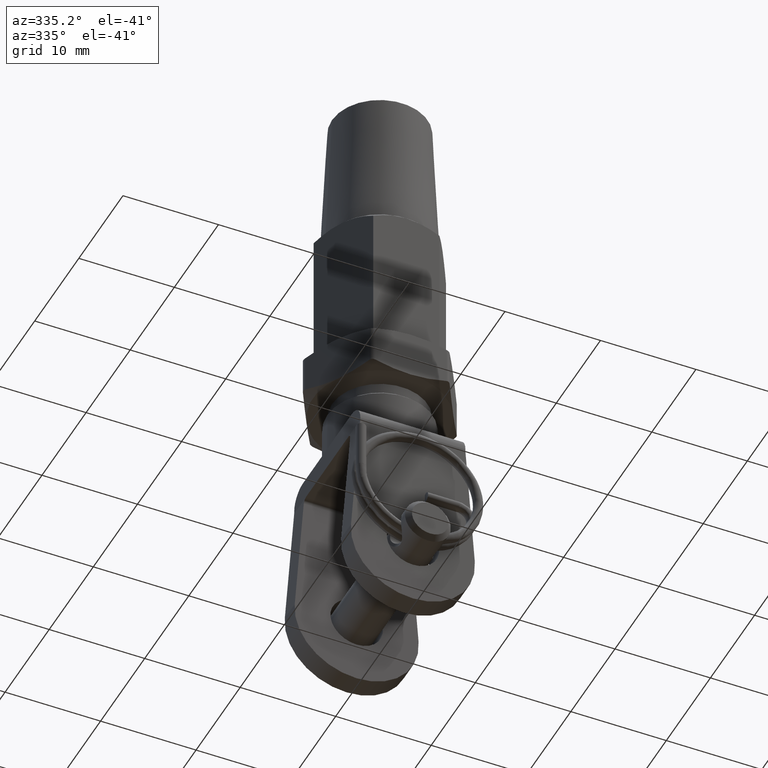
[diagram: clean part render]
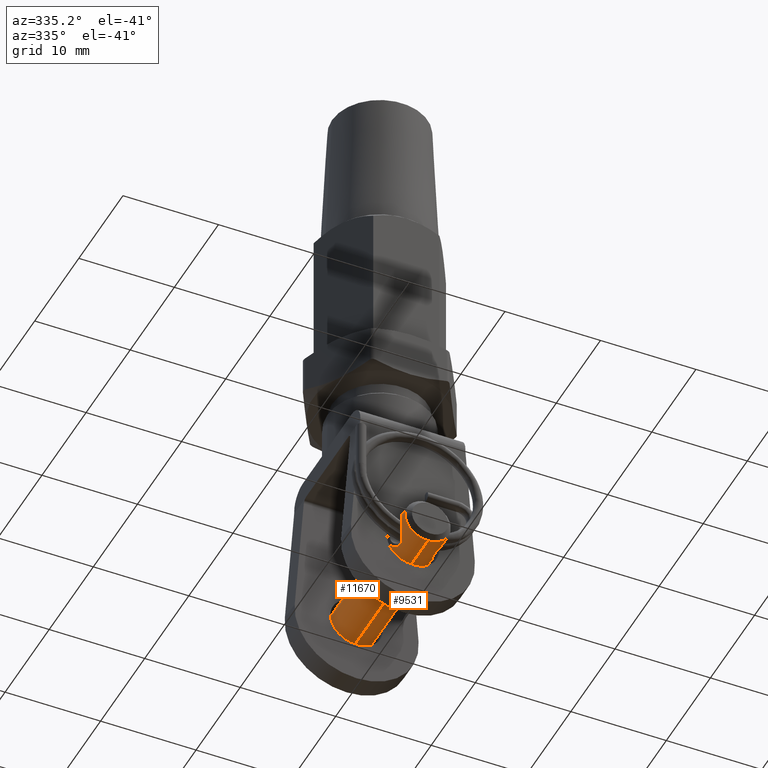
[diagram: same view with one multi-face feature highlighted, each face labeled with its STEP entity id]
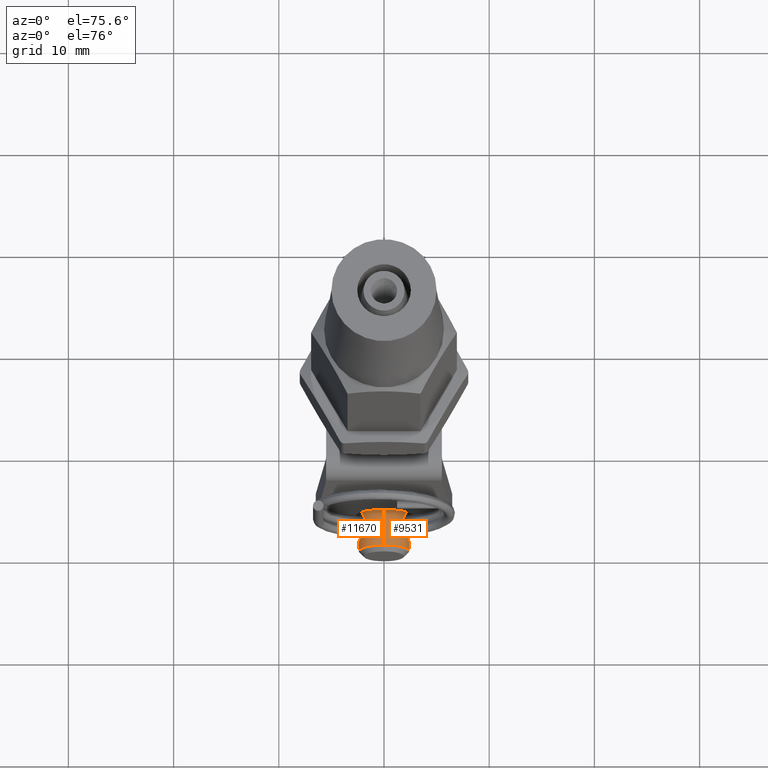
[diagram: same view with one multi-face feature highlighted, each face labeled with its STEP entity id]
A machine part, auxiliary view. The highlighted faces form ONE feature: a constant-radius fillet chain: 2 tangent blend faces with common blend radius 2.4 mm. The faces share edges in the B-rep.
A second angle (auxiliary view) of the same feature is appended — it is thin or edge-on in the first view.
Their STEP definitions:
[1] entity #11670 (Cylinder):
#136 = CARTESIAN_POINT ( 'NONE',  ( 0.0000000000000000000, 1.999999999999999600, -2.400000000000003000 ) ) ;
#410 = AXIS2_PLACEMENT_3D ( 'NONE', #14712, #18077, #21734 ) ;
#667 = DIRECTION ( 'NONE',  ( -0.0000000000000000000, -1.000000000000000000, -0.0000000000000000000 ) ) ;
#1005 = CARTESIAN_POINT ( 'NONE',  ( 1.866490585483761900, 17.44657581705222400, -1.508927518939310100 ) ) ;
#1110 = CARTESIAN_POINT ( 'NONE',  ( 2.067999416795804500, 19.01159639936377100, 1.220705294030628200 ) ) ;
#1111 = ORIENTED_EDGE ( 'NONE', *, *, #22581, .T. ) ;
#1335 = CARTESIAN_POINT ( 'NONE',  ( 1.913282471157462300, 18.68660000650002200, 1.449820356530497900 ) ) ;
#1411 = CARTESIAN_POINT ( 'NONE',  ( 2.010135013035278200, 18.89907834666892600, -1.311715693708461300 ) ) ;
#1575 = CARTESIAN_POINT ( 'NONE',  ( 2.262259428812721600, 19.33517626606314000, -0.8265585608445230600 ) ) ;
#1647 = CARTESIAN_POINT ( 'NONE',  ( 2.368781593166509000, 19.49258147114442600, -0.4357643189075582900 ) ) ;
#2050 = CARTESIAN_POINT ( 'NONE',  ( 1.773800196618495100, 17.99719539089055700, 1.616673393878985900 ) ) ;
#2109 = EDGE_CURVE ( 'NONE', #17518, #9551, #18134, .T. ) ;
#2920 = AXIS2_PLACEMENT_3D ( 'NONE', #14370, #23390, #21464 ) ;
#3051 = CARTESIAN_POINT ( 'NONE',  ( 2.286977257020879500, 16.62834408819435700, -0.7349450092023531700 ) ) ;
#3219 = CARTESIAN_POINT ( 'NONE',  ( 1.900339689853512100, 17.35078442727524700, 1.466090746243713600 ) ) ;
#3324 = CARTESIAN_POINT ( 'NONE',  ( 2.400288494114114300, 19.53616559896426000, -0.2152889701721160400 ) ) ;
#3377 = CARTESIAN_POINT ( 'NONE',  ( 2.364247270420312100, 16.51505366456232300, 0.4263144413362723900 ) ) ;
#4501 = CARTESIAN_POINT ( 'NONE',  ( 2.368160502128828800, 16.50824953189904700, -0.4398322394796467200 ) ) ;
#4584 = CARTESIAN_POINT ( 'NONE',  ( 2.185657138191589700, 16.78611220422536500, -0.9957320026082829800 ) ) ;
#4598 = CARTESIAN_POINT ( 'NONE',  ( 2.939152317953651500E-016, 1.999999999999999600, 2.400000000000003000 ) ) ;
#4600 = EDGE_CURVE ( 'NONE', #9551, #18345, #14083, .T. ) ;
#4740 = CARTESIAN_POINT ( 'NONE',  ( 1.773797739569129600, 18.00000000000000400, -1.616676089728383200 ) ) ;
#4816 = CARTESIAN_POINT ( 'NONE',  ( 1.812784788610190700, 17.64142720283184600, -1.572900341996850100 ) ) ;
#4893 = CARTESIAN_POINT ( 'NONE',  ( 1.823665926486097300, 17.58533475707860900, 1.560489035969438800 ) ) ;
#4967 = CARTESIAN_POINT ( 'NONE',  ( 1.773800196618495100, 17.99719539089055700, 1.616673393878985900 ) ) ;
#6097 = EDGE_LOOP ( 'NONE', ( #15425, #15973 ) ) ;
#6324 = CARTESIAN_POINT ( 'NONE',  ( 1.793927623210560500, 17.74078694000317600, -1.594373813869385500 ) ) ;
#6633 = CARTESIAN_POINT ( 'NONE',  ( 1.824922969406736200, 17.58998274109811200, -1.558867632880004600 ) ) ;
#6797 = FACE_BOUND ( 'NONE', #6097, .T. ) ;
#6809 = CARTESIAN_POINT ( 'NONE',  ( 1.849618342933271300, 18.50518804961500800, 1.530209419044795200 ) ) ;
#6860 = CARTESIAN_POINT ( 'NONE',  ( 2.070362214356135800, 16.98405271397241700, 1.216727796280972600 ) ) ;
#6939 = CARTESIAN_POINT ( 'NONE',  ( 1.784460819820933100, 17.78947121321877100, 1.605173830253666900 ) ) ;
#7043 = CARTESIAN_POINT ( 'NONE',  ( 1.773797739569129600, 18.00000000000000400, -1.616676089728383200 ) ) ;
#7106 = VERTEX_POINT ( 'NONE', #10306 ) ;
#7120 = CARTESIAN_POINT ( 'NONE',  ( 2.362391129818993500, 19.48227919722486600, 0.4369212449692667600 ) ) ;
#7899 = B_SPLINE_CURVE_WITH_KNOTS ( 'NONE', 3,
 ( #8573, #19473, #19243, #21302, #12217, #22827, #6809, #1335, #14054, #15893, #1110, #13835, #8262, #20993, #7120, #21695, #8742, #3324, #1647, #1575, #10632, #14212, #10467, #17799, #1411, #8817, #23392, #21546, #16211, #17961, #12451, #12613, #23233, #7043 ),
 .UNSPECIFIED., .F., .F.,
 ( 4, 2, 2, 2, 2, 2, 2, 2, 2, 2, 2, 2, 2, 2, 2, 2, 4 ),
 ( 0.5000000000000000000, 0.5156249999999998900, 0.5312499999999997800, 0.5624999999999995600, 0.5937499999999992200, 0.6249999999999990000, 0.6874999999999984500, 0.7187499999999980000, 0.7499999999999977800, 0.8124999999999971100, 0.8749999999999964500, 0.8906249999999966700, 0.9062499999999968900, 0.9218749999999971100, 0.9374999999999973400, 0.9687499999999986700, 1.000000000000000000 ),
 .UNSPECIFIED. ) ;
#8143 = CARTESIAN_POINT ( 'NONE',  ( 2.400263577070727500, 16.46387238725792900, 0.1042205364952934800 ) ) ;
#8262 = CARTESIAN_POINT ( 'NONE',  ( 2.260048657403913400, 19.33182475435963000, 0.8329579345951890800 ) ) ;
#8461 = CARTESIAN_POINT ( 'NONE',  ( 1.951687957844529000, 17.22336591854579500, -1.398433226826018400 ) ) ;
#8573 = CARTESIAN_POINT ( 'NONE',  ( 1.773800196618495100, 17.99719539089055700, 1.616673393878985900 ) ) ;
#8742 = CARTESIAN_POINT ( 'NONE',  ( 2.399852568113973300, 19.53554138909465700, 0.1124330922387512500 ) ) ;
#8817 = CARTESIAN_POINT ( 'NONE',  ( 1.970772633191499200, 18.81666752248959500, -1.370144539825944200 ) ) ;
#9109 = DIRECTION ( 'NONE',  ( -0.0000000000000000000, -1.000000000000000000, -0.0000000000000000000 ) ) ;
#9353 = FACE_OUTER_BOUND ( 'NONE', #15636, .T. ) ;
#9551 = VERTEX_POINT ( 'NONE', #136 ) ;
#9932 = CYLINDRICAL_SURFACE ( 'NONE', #2920, 2.400000000000002100 ) ;
#10199 = CARTESIAN_POINT ( 'NONE',  ( 1.776473172871329400, 17.89448116411606500, -1.613752653522716200 ) ) ;
#10283 = CARTESIAN_POINT ( 'NONE',  ( 2.147165849575455500, 16.84915254222355700, -1.075367286279148600 ) ) ;
#10306 = CARTESIAN_POINT ( 'NONE',  ( 2.939152317953650100E-016, 20.40000000000000200, 2.400000000000002100 ) ) ;
#10444 = CARTESIAN_POINT ( 'NONE',  ( 1.971910948140296500, 17.18087774134971100, 1.368497077279902100 ) ) ;
#10467 = CARTESIAN_POINT ( 'NONE',  ( 2.069154856726925600, 19.01258336475865500, -1.216579123601110500 ) ) ;
#10527 = CARTESIAN_POINT ( 'NONE',  ( 2.289676973913622200, 16.62429844391058300, 0.7262962837063875500 ) ) ;
#10632 = CARTESIAN_POINT ( 'NONE',  ( 2.187032187431269500, 19.22086426092899800, -1.001994627945267800 ) ) ;
#11050 = DIRECTION ( 'NONE',  ( -0.0000000000000000000, -1.000000000000000000, -0.0000000000000000000 ) ) ;
#11187 = VECTOR ( 'NONE', #11050, 1000.000000000000000 ) ;
#11492 = EDGE_CURVE ( 'NONE', #18295, #11994, #7899, .T. ) ;
#11670 = ADVANCED_FACE ( 'NONE', ( #6797, #9353 ), #9932, .T. ) ;
#11994 = VERTEX_POINT ( 'NONE', #13312 ) ;
#12217 = CARTESIAN_POINT ( 'NONE',  ( 1.793569833453412300, 18.25693687540029600, 1.594774783730014100 ) ) ;
#12254 = CIRCLE ( 'NONE', #410, 2.400000000000002100 ) ;
#12271 = CARTESIAN_POINT ( 'NONE',  ( 2.392771612592189600, 16.47438748095039100, 0.2146000199317899300 ) ) ;
#12351 = CARTESIAN_POINT ( 'NONE',  ( 1.850705120470565300, 17.49080869672555100, 1.528967824802071300 ) ) ;
#12451 = CARTESIAN_POINT ( 'NONE',  ( 1.822504000314675700, 18.40991937674009900, -1.561835397531140800 ) ) ;
#12613 = CARTESIAN_POINT ( 'NONE',  ( 1.784011322576394700, 18.20682731249344100, -1.605663177962138600 ) ) ;
#13289 = B_SPLINE_CURVE_WITH_KNOTS ( 'NONE', 3,
 ( #4740, #17465, #10199, #22963, #6324, #4816, #6633, #20965, #1005, #19372, #8461, #13954, #21198, #10283, #4584, #19140, #3051, #4501, #19055, #8143, #12271, #3377, #14261, #10527, #19523, #14105, #14027, #6860, #23285, #10444, #17855, #21520, #3219, #12351, #4893, #6939, #19598, #4967 ),
 .UNSPECIFIED., .F., .F.,
 ( 4, 2, 2, 2, 2, 2, 2, 2, 2, 2, 2, 2, 2, 2, 2, 2, 2, 2, 4 ),
 ( 0.0000000000000000000, 0.01562500000000051300, 0.03125000000000102700, 0.04687500000000154000, 0.06250000000000205400, 0.09375000000000220700, 0.1250000000000023600, 0.1562500000000025300, 0.1875000000000026900, 0.2500000000000026100, 0.2812500000000025500, 0.3125000000000025500, 0.3437500000000025000, 0.3750000000000025000, 0.4062500000000024400, 0.4218750000000020500, 0.4375000000000016100, 0.4687500000000007800, 0.5000000000000000000 ),
 .UNSPECIFIED. ) ;
#13312 = CARTESIAN_POINT ( 'NONE',  ( 1.773797739569129600, 18.00000000000000400, -1.616676089728383200 ) ) ;
#13469 = CARTESIAN_POINT ( 'NONE',  ( 0.0000000000000000000, 1.999999999999999600, 0.0000000000000000000 ) ) ;
#13835 = CARTESIAN_POINT ( 'NONE',  ( 2.185897596645991500, 19.21904822644285800, 1.004402164447093700 ) ) ;
#13954 = CARTESIAN_POINT ( 'NONE',  ( 2.028344221779731200, 17.06272200196107700, -1.284726076896999700 ) ) ;
#14027 = CARTESIAN_POINT ( 'NONE',  ( 2.149134368243464700, 16.84584549165298400, 1.071469876436645700 ) ) ;
#14054 = CARTESIAN_POINT ( 'NONE',  ( 1.951161457006096200, 18.77541400232625400, 1.399146137887807800 ) ) ;
#14083 = CIRCLE ( 'NONE', #20239, 2.400000000000003000 ) ;
#14105 = CARTESIAN_POINT ( 'NONE',  ( 2.187360870083085100, 16.78334612833109300, 0.9920048466630045900 ) ) ;
#14212 = CARTESIAN_POINT ( 'NONE',  ( 2.088715468226213900, 19.04809159797152100, -1.182777084554937900 ) ) ;
#14261 = CARTESIAN_POINT ( 'NONE',  ( 2.342440641140604000, 16.54635302924930300, 0.5320702766822716900 ) ) ;
#14370 = CARTESIAN_POINT ( 'NONE',  ( 0.0000000000000000000, 0.0000000000000000000, 0.0000000000000000000 ) ) ;
#14390 = EDGE_CURVE ( 'NONE', #11994, #18295, #13289, .T. ) ;
#14712 = CARTESIAN_POINT ( 'NONE',  ( 0.0000000000000000000, 20.40000000000000200, 0.0000000000000000000 ) ) ;
#14993 = VECTOR ( 'NONE', #9109, 1000.000000000000000 ) ;
#15425 = ORIENTED_EDGE ( 'NONE', *, *, #14390, .T. ) ;
#15636 = EDGE_LOOP ( 'NONE', ( #1111, #18269, #17487, #19911 ) ) ;
#15893 = CARTESIAN_POINT ( 'NONE',  ( 2.027385962712138700, 18.93538446633532100, 1.286214253019417600 ) ) ;
#15973 = ORIENTED_EDGE ( 'NONE', *, *, #11492, .T. ) ;
#16211 = CARTESIAN_POINT ( 'NONE',  ( 1.898611965722771600, 18.64463374140540700, -1.468322641040503500 ) ) ;
#17465 = CARTESIAN_POINT ( 'NONE',  ( 1.773813765221772000, 17.94687056346992200, -1.616658506573284100 ) ) ;
#17487 = ORIENTED_EDGE ( 'NONE', *, *, #4600, .F. ) ;
#17518 = VERTEX_POINT ( 'NONE', #22903 ) ;
#17799 = CARTESIAN_POINT ( 'NONE',  ( 2.029286215509961400, 18.93695293964344700, -1.281976614700880000 ) ) ;
#17855 = CARTESIAN_POINT ( 'NONE',  ( 1.953578532852745500, 17.22135096330278600, 1.394450451567992500 ) ) ;
#17961 = CARTESIAN_POINT ( 'NONE',  ( 1.849409260777944200, 18.50490588065702000, -1.530516411039142700 ) ) ;
#18030 = LINE ( 'NONE', #20297, #11187 ) ;
#18077 = DIRECTION ( 'NONE',  ( -0.0000000000000000000, -1.000000000000000000, -0.0000000000000000000 ) ) ;
#18134 = LINE ( 'NONE', #18192, #14993 ) ;
#18192 = CARTESIAN_POINT ( 'NONE',  ( 0.0000000000000000000, 0.0000000000000000000, -2.400000000000002100 ) ) ;
#18269 = ORIENTED_EDGE ( 'NONE', *, *, #19477, .T. ) ;
#18295 = VERTEX_POINT ( 'NONE', #2050 ) ;
#18345 = VERTEX_POINT ( 'NONE', #4598 ) ;
#19055 = CARTESIAN_POINT ( 'NONE',  ( 2.399451071029666100, 16.46502857303975300, -0.2261486155020310800 ) ) ;
#19140 = CARTESIAN_POINT ( 'NONE',  ( 2.255899440671773200, 16.67520840935137700, -0.8243161167434069900 ) ) ;
#19243 = CARTESIAN_POINT ( 'NONE',  ( 1.776168234423493900, 18.10103894211802000, 1.614087746041395800 ) ) ;
#19372 = CARTESIAN_POINT ( 'NONE',  ( 1.913918226185932900, 17.31191911619840300, -1.448970143212308800 ) ) ;
#19473 = CARTESIAN_POINT ( 'NONE',  ( 1.773699340682392200, 18.04874531004124100, 1.616784052147977000 ) ) ;
#19477 = EDGE_CURVE ( 'NONE', #7106, #18345, #18030, .T. ) ;
#19523 = CARTESIAN_POINT ( 'NONE',  ( 2.257464828691371700, 16.67281657910189100, 0.8200449615691548500 ) ) ;
#19598 = CARTESIAN_POINT ( 'NONE',  ( 1.774001908490701900, 17.89409555258921400, 1.616452077341004300 ) ) ;
#19911 = ORIENTED_EDGE ( 'NONE', *, *, #2109, .F. ) ;
#20239 = AXIS2_PLACEMENT_3D ( 'NONE', #13469, #667, #22784 ) ;
#20297 = CARTESIAN_POINT ( 'NONE',  ( 2.939152317953650100E-016, 0.0000000000000000000, 2.400000000000002100 ) ) ;
#20965 = CARTESIAN_POINT ( 'NONE',  ( 1.851032425817863400, 17.49529703187978300, -1.527773248777462700 ) ) ;
#20993 = CARTESIAN_POINT ( 'NONE',  ( 2.341186679389175600, 19.45184581952178600, 0.5378239915718467900 ) ) ;
#21198 = CARTESIAN_POINT ( 'NONE',  ( 2.068686757776550900, 16.98714604255167500, -1.219537241818553300 ) ) ;
#21302 = CARTESIAN_POINT ( 'NONE',  ( 1.785913862955126300, 18.20382542268679800, 1.603298014406792300 ) ) ;
#21464 = DIRECTION ( 'NONE',  ( 0.0000000000000000000, 0.0000000000000000000, -1.000000000000000000 ) ) ;
#21520 = CARTESIAN_POINT ( 'NONE',  ( 1.916906644191772400, 17.30846713433779600, 1.444448013379054500 ) ) ;
#21546 = CARTESIAN_POINT ( 'NONE',  ( 1.915376668694887900, 18.68771338686762100, -1.446478058434803600 ) ) ;
#21695 = CARTESIAN_POINT ( 'NONE',  ( 2.392195542128870800, 19.52481049449268400, 0.2217938519700476700 ) ) ;
#21734 = DIRECTION ( 'NONE',  ( 0.0000000000000000000, 0.0000000000000000000, 1.000000000000000000 ) ) ;
#22581 = EDGE_CURVE ( 'NONE', #17518, #7106, #12254, .T. ) ;
#22784 = DIRECTION ( 'NONE',  ( 0.0000000000000000000, 0.0000000000000000000, -1.000000000000000000 ) ) ;
#22827 = CARTESIAN_POINT ( 'NONE',  ( 1.821529273081014000, 18.40540250919226800, 1.562955066689307100 ) ) ;
#22903 = CARTESIAN_POINT ( 'NONE',  ( 0.0000000000000000000, 20.40000000000000200, -2.400000000000002100 ) ) ;
#22963 = CARTESIAN_POINT ( 'NONE',  ( 1.786372771748485600, 17.79270350182164200, -1.602787222633986500 ) ) ;
#23233 = CARTESIAN_POINT ( 'NONE',  ( 1.773766567916318800, 18.10334258370307800, -1.616710290894371300 ) ) ;
#23285 = CARTESIAN_POINT ( 'NONE',  ( 2.030325519734652600, 17.05879786576366500, 1.281657690489534500 ) ) ;
#23390 = DIRECTION ( 'NONE',  ( -0.0000000000000000000, -1.000000000000000000, -0.0000000000000000000 ) ) ;
#23392 = CARTESIAN_POINT ( 'NONE',  ( 1.952202893077045200, 18.77555198035570100, -1.396377606801133100 ) ) ;
[2] entity #9531 (Cylinder):
#136 = CARTESIAN_POINT ( 'NONE',  ( 0.0000000000000000000, 1.999999999999999600, -2.400000000000003000 ) ) ;
#216 = EDGE_CURVE ( 'NONE', #7106, #17518, #12182, .T. ) ;
#455 = CARTESIAN_POINT ( 'NONE',  ( -1.823665926488309700, 18.41466524292901900, 1.560489035966917200 ) ) ;
#610 = CARTESIAN_POINT ( 'NONE',  ( -1.916906644196676700, 18.69153286567188500, 1.444448013372369800 ) ) ;
#642 = CARTESIAN_POINT ( 'NONE',  ( -2.067999416817887200, 16.98840360059552200, 1.220705293990114000 ) ) ;
#722 = CARTESIAN_POINT ( 'NONE',  ( -2.341186679390729000, 16.54815418048364600, 0.5378239915661945400 ) ) ;
#806 = CARTESIAN_POINT ( 'NONE',  ( -2.368781593147010400, 16.50741852889919100, -0.4357643189790940100 ) ) ;
#992 = EDGE_CURVE ( 'NONE', #9625, #15009, #15974, .T. ) ;
#1249 = EDGE_CURVE ( 'NONE', #15009, #9625, #1538, .T. ) ;
#1538 = B_SPLINE_CURVE_WITH_KNOTS ( 'NONE', 3,
 ( #2039, #23549, #12847, #5537, #12772, #9193, #1884, #9117, #10870, #12699, #9039, #5614, #18341, #7282, #1735, #7436, #20178, #11103, #20025, #14766, #7514, #3875, #18418, #21849, #10947, #16605, #5699, #9350, #22092, #12622, #14453, #610, #15084, #15157, #455, #9516, #18746, #16695 ),
 .UNSPECIFIED., .F., .F.,
 ( 4, 2, 2, 2, 2, 2, 2, 2, 2, 2, 2, 2, 2, 2, 2, 2, 2, 2, 4 ),
 ( 0.0000000000000000000, 0.01562499999999999700, 0.03124999999999999300, 0.04687499999999998600, 0.06249999999999998600, 0.09374999999999997200, 0.1249999999999999700, 0.1562499999999999700, 0.1874999999999999400, 0.2499999999999995600, 0.2812499999999993900, 0.3124999999999991700, 0.3437499999999989500, 0.3749999999999987200, 0.4062499999999984500, 0.4218749999999987200, 0.4374999999999990000, 0.4687499999999995000, 0.5000000000000000000 ),
 .UNSPECIFIED. ) ;
#1735 = CARTESIAN_POINT ( 'NONE',  ( -2.185657138191506600, 19.21388779577835800, -0.9957320026084848200 ) ) ;
#1884 = CARTESIAN_POINT ( 'NONE',  ( -1.824922969409046100, 18.41001725890481200, -1.558867632877253700 ) ) ;
#2039 = CARTESIAN_POINT ( 'NONE',  ( -1.773797739569129100, 17.99999999999999600, -1.616676089728383800 ) ) ;
#2109 = EDGE_CURVE ( 'NONE', #17518, #9551, #18134, .T. ) ;
#2540 = CARTESIAN_POINT ( 'NONE',  ( -2.400288494113796700, 16.46383440103619100, -0.2152889699332252700 ) ) ;
#2692 = CARTESIAN_POINT ( 'NONE',  ( -2.185897596601825000, 16.78095177363854900, 1.004402164528125800 ) ) ;
#3070 = CARTESIAN_POINT ( 'NONE',  ( 0.0000000000000000000, 20.40000000000000200, 0.0000000000000000000 ) ) ;
#3698 = DIRECTION ( 'NONE',  ( -0.0000000000000000000, -1.000000000000000000, -0.0000000000000000000 ) ) ;
#3825 = AXIS2_PLACEMENT_3D ( 'NONE', #18331, #7199, #7274 ) ;
#3875 = CARTESIAN_POINT ( 'NONE',  ( -2.364247270419662400, 19.48494633544046600, 0.4263144413410866500 ) ) ;
#4043 = AXIS2_PLACEMENT_3D ( 'NONE', #20328, #3698, #20084 ) ;
#4070 = ORIENTED_EDGE ( 'NONE', *, *, #17692, .F. ) ;
#4217 = CARTESIAN_POINT ( 'NONE',  ( -1.952202893075891200, 17.22444801964747200, -1.396377606802703200 ) ) ;
#4300 = CARTESIAN_POINT ( 'NONE',  ( -2.362391129835012200, 16.51772080275992500, 0.4369212448536493000 ) ) ;
#4461 = CARTESIAN_POINT ( 'NONE',  ( -2.010135013043325100, 17.10092165331030500, -1.311715693696517100 ) ) ;
#4539 = CARTESIAN_POINT ( 'NONE',  ( -1.822504000314244300, 17.59008062326037700, -1.561835397531632600 ) ) ;
#4598 = CARTESIAN_POINT ( 'NONE',  ( 2.939152317953651500E-016, 1.999999999999999600, 2.400000000000003000 ) ) ;
#4905 = ORIENTED_EDGE ( 'NONE', *, *, #19477, .F. ) ;
#4965 = CIRCLE ( 'NONE', #4043, 2.400000000000003000 ) ;
#5537 = CARTESIAN_POINT ( 'NONE',  ( -1.786372771746742600, 18.20729649816735900, -1.602787222635917700 ) ) ;
#5614 = CARTESIAN_POINT ( 'NONE',  ( -2.028344221793431800, 18.93727799806313800, -1.284726076876677500 ) ) ;
#5699 = CARTESIAN_POINT ( 'NONE',  ( -2.149134368237765700, 19.15415450833026900, 1.071469876447153100 ) ) ;
#5764 = CARTESIAN_POINT ( 'NONE',  ( -1.773800196618494000, 18.00280460910944000, 1.616673393878987000 ) ) ;
#6036 = CARTESIAN_POINT ( 'NONE',  ( -1.776168234424213600, 17.89896105787820300, 1.614087746040599800 ) ) ;
#6203 = CARTESIAN_POINT ( 'NONE',  ( -1.793569833452602900, 17.74306312460399600, 1.594774783730935200 ) ) ;
#6363 = CARTESIAN_POINT ( 'NONE',  ( -2.187032187449224900, 16.77913573903275000, -1.001994627912252200 ) ) ;
#6974 = ORIENTED_EDGE ( 'NONE', *, *, #2109, .T. ) ;
#7106 = VERTEX_POINT ( 'NONE', #10306 ) ;
#7199 = DIRECTION ( 'NONE',  ( -0.0000000000000000000, -1.000000000000000000, -0.0000000000000000000 ) ) ;
#7274 = DIRECTION ( 'NONE',  ( 0.0000000000000000000, 0.0000000000000000000, -1.000000000000000000 ) ) ;
#7282 = CARTESIAN_POINT ( 'NONE',  ( -2.147165849617525000, 19.15084745784605500, -1.075367286201863500 ) ) ;
#7436 = CARTESIAN_POINT ( 'NONE',  ( -2.255899440671855800, 19.32479159064489900, -0.8243161167432050400 ) ) ;
#7514 = CARTESIAN_POINT ( 'NONE',  ( -2.392771612592838000, 19.52561251904681300, 0.2146000199269754200 ) ) ;
#7866 = CARTESIAN_POINT ( 'NONE',  ( -1.898611965728629800, 17.35536625857822600, -1.468322641033098700 ) ) ;
#8180 = CARTESIAN_POINT ( 'NONE',  ( -2.069154856736961500, 16.98741663522259400, -1.216579123584647500 ) ) ;
#8898 = ORIENTED_EDGE ( 'NONE', *, *, #216, .T. ) ;
#8943 = ORIENTED_EDGE ( 'NONE', *, *, #992, .T. ) ;
#9039 = CARTESIAN_POINT ( 'NONE',  ( -1.951687957830829000, 18.77663408142995700, -1.398433226846339500 ) ) ;
#9109 = DIRECTION ( 'NONE',  ( -0.0000000000000000000, -1.000000000000000000, -0.0000000000000000000 ) ) ;
#9117 = CARTESIAN_POINT ( 'NONE',  ( -1.851032425815553100, 18.50470296811728600, -1.527773248780214700 ) ) ;
#9193 = CARTESIAN_POINT ( 'NONE',  ( -1.812784788605822800, 18.35857279714703700, -1.572900342001823700 ) ) ;
#9350 = CARTESIAN_POINT ( 'NONE',  ( -2.070362214361837000, 19.01594728604434100, 1.216727796270461900 ) ) ;
#9516 = CARTESIAN_POINT ( 'NONE',  ( -1.784460819818719500, 18.21052878677361900, 1.605173830256189500 ) ) ;
#9531 = ADVANCED_FACE ( 'NONE', ( #17113, #16537 ), #13374, .T. ) ;
#9551 = VERTEX_POINT ( 'NONE', #136 ) ;
#9625 = VERTEX_POINT ( 'NONE', #5764 ) ;
#9854 = CARTESIAN_POINT ( 'NONE',  ( -1.785913862954404000, 17.79617457731696500, 1.603298014407593200 ) ) ;
#10011 = CARTESIAN_POINT ( 'NONE',  ( -1.784011322576827300, 17.79317268750607900, -1.605663177961646800 ) ) ;
#10306 = CARTESIAN_POINT ( 'NONE',  ( 2.939152317953650100E-016, 20.40000000000000200, 2.400000000000002100 ) ) ;
#10386 = DIRECTION ( 'NONE',  ( -0.0000000000000000000, -1.000000000000000000, -0.0000000000000000000 ) ) ;
#10870 = CARTESIAN_POINT ( 'NONE',  ( -1.866490585478671100, 18.55342418293659500, -1.508927518945745200 ) ) ;
#10947 = CARTESIAN_POINT ( 'NONE',  ( -2.257464828711842000, 19.32718342093488700, 0.8200449615189411300 ) ) ;
#11050 = DIRECTION ( 'NONE',  ( -0.0000000000000000000, -1.000000000000000000, -0.0000000000000000000 ) ) ;
#11103 = CARTESIAN_POINT ( 'NONE',  ( -2.368160502142981900, 19.49175046812282000, -0.4398322394282029900 ) ) ;
#11187 = VECTOR ( 'NONE', #11050, 1000.000000000000000 ) ;
#11526 = CARTESIAN_POINT ( 'NONE',  ( -1.773699340682449500, 17.95125468995944800, 1.616784052147914000 ) ) ;
#11763 = CARTESIAN_POINT ( 'NONE',  ( -2.027385962700887700, 17.06461553368967900, 1.286214253036086100 ) ) ;
#11847 = CARTESIAN_POINT ( 'NONE',  ( -1.849409260766224300, 17.49509411937572500, -1.530516411053956200 ) ) ;
#12182 = CIRCLE ( 'NONE', #18218, 2.400000000000002100 ) ;
#12622 = CARTESIAN_POINT ( 'NONE',  ( -1.971910948129665100, 18.81912225862543800, 1.368497077295706800 ) ) ;
#12699 = CARTESIAN_POINT ( 'NONE',  ( -1.913918226196114300, 18.68808088382394000, -1.448970143199437100 ) ) ;
#12772 = CARTESIAN_POINT ( 'NONE',  ( -1.793927623214929500, 18.25921306001793100, -1.594373813864410600 ) ) ;
#12847 = CARTESIAN_POINT ( 'NONE',  ( -1.776473172873073200, 18.10551883589492300, -1.613752653520785300 ) ) ;
#13035 = EDGE_LOOP ( 'NONE', ( #20836, #8943 ) ) ;
#13277 = CARTESIAN_POINT ( 'NONE',  ( -1.773766567916281300, 17.89665741634424000, -1.616710290894413800 ) ) ;
#13374 = CYLINDRICAL_SURFACE ( 'NONE', #3825, 2.400000000000002100 ) ;
#13774 = EDGE_LOOP ( 'NONE', ( #4905, #8898, #6974, #4070 ) ) ;
#13856 = CARTESIAN_POINT ( 'NONE',  ( -1.773797739569129100, 17.99999999999999600, -1.616676089728383800 ) ) ;
#14453 = CARTESIAN_POINT ( 'NONE',  ( -1.953578532847841400, 18.77864903668752900, 1.394450451574679400 ) ) ;
#14766 = CARTESIAN_POINT ( 'NONE',  ( -2.400263577070823400, 19.53612761273448900, 0.1042205365343002900 ) ) ;
#14993 = VECTOR ( 'NONE', #9109, 1000.000000000000000 ) ;
#15009 = VERTEX_POINT ( 'NONE', #13856 ) ;
#15084 = CARTESIAN_POINT ( 'NONE',  ( -1.900339689844491500, 18.64921557269430300, 1.466090746255142900 ) ) ;
#15110 = CARTESIAN_POINT ( 'NONE',  ( -1.849618342916699000, 17.49481195042842400, 1.530209419065720100 ) ) ;
#15157 = CARTESIAN_POINT ( 'NONE',  ( -1.850705120488612700, 18.50919130333534900, 1.528967824779209600 ) ) ;
#15188 = CARTESIAN_POINT ( 'NONE',  ( -1.915376668696042100, 17.31228661312920300, -1.446478058433234000 ) ) ;
#15342 = CARTESIAN_POINT ( 'NONE',  ( -1.970772633183451900, 17.18333247753116000, -1.370144539837890400 ) ) ;
#15974 = B_SPLINE_CURVE_WITH_KNOTS ( 'NONE', 3,
 ( #19008, #11526, #6036, #9854, #6203, #18775, #15110, #18930, #17109, #11763, #642, #2692, #20926, #722, #4300, #19095, #17024, #2540, #806, #18849, #6363, #22761, #8180, #22604, #4461, #15342, #4217, #15188, #7866, #11847, #4539, #10011, #13277, #20765 ),
 .UNSPECIFIED., .F., .F.,
 ( 4, 2, 2, 2, 2, 2, 2, 2, 2, 2, 2, 2, 2, 2, 2, 2, 4 ),
 ( 0.5000000000000000000, 0.5156249999999995600, 0.5312499999999992200, 0.5624999999999994400, 0.5937499999999997800, 0.6250000000000000000, 0.6875000000000004400, 0.7187500000000006700, 0.7500000000000008900, 0.8125000000000013300, 0.8750000000000017800, 0.8906250000000015500, 0.9062500000000013300, 0.9218750000000011100, 0.9375000000000008900, 0.9687500000000004400, 1.000000000000000000 ),
 .UNSPECIFIED. ) ;
#16537 = FACE_BOUND ( 'NONE', #13035, .T. ) ;
#16605 = CARTESIAN_POINT ( 'NONE',  ( -2.187360870062614800, 19.21665387163212200, 0.9920048467132150900 ) ) ;
#16695 = CARTESIAN_POINT ( 'NONE',  ( -1.773800196618494000, 18.00280460910944000, 1.616673393878987000 ) ) ;
#17024 = CARTESIAN_POINT ( 'NONE',  ( -2.399852568114132700, 16.46445861090512300, 0.1124330921193050400 ) ) ;
#17109 = CARTESIAN_POINT ( 'NONE',  ( -1.951161457017347700, 17.22458599764874500, 1.399146137871138500 ) ) ;
#17113 = FACE_OUTER_BOUND ( 'NONE', #13774, .T. ) ;
#17518 = VERTEX_POINT ( 'NONE', #22903 ) ;
#17637 = DIRECTION ( 'NONE',  ( 0.0000000000000000000, 0.0000000000000000000, 1.000000000000000000 ) ) ;
#17692 = EDGE_CURVE ( 'NONE', #18345, #9551, #4965, .T. ) ;
#18030 = LINE ( 'NONE', #20297, #11187 ) ;
#18134 = LINE ( 'NONE', #18192, #14993 ) ;
#18192 = CARTESIAN_POINT ( 'NONE',  ( 0.0000000000000000000, 0.0000000000000000000, -2.400000000000002100 ) ) ;
#18218 = AXIS2_PLACEMENT_3D ( 'NONE', #3070, #10386, #17637 ) ;
#18331 = CARTESIAN_POINT ( 'NONE',  ( 0.0000000000000000000, 0.0000000000000000000, 0.0000000000000000000 ) ) ;
#18341 = CARTESIAN_POINT ( 'NONE',  ( -2.068686757734477900, 19.01285395737869500, -1.219537241895844100 ) ) ;
#18345 = VERTEX_POINT ( 'NONE', #4598 ) ;
#18418 = CARTESIAN_POINT ( 'NONE',  ( -2.342440641172620200, 19.45364697080561100, 0.5320702765644167400 ) ) ;
#18746 = CARTESIAN_POINT ( 'NONE',  ( -1.774001908490583800, 18.10590444740944700, 1.616452077341132800 ) ) ;
#18775 = CARTESIAN_POINT ( 'NONE',  ( -1.821529273082628700, 17.59459749079915300, 1.562955066687470500 ) ) ;
#18849 = CARTESIAN_POINT ( 'NONE',  ( -2.262259428832222400, 16.66482373389324000, -0.8265585607729868400 ) ) ;
#18930 = CARTESIAN_POINT ( 'NONE',  ( -1.913282471174032200, 17.31339999345652800, 1.449820356509575300 ) ) ;
#19008 = CARTESIAN_POINT ( 'NONE',  ( -1.773800196618494000, 18.00280460910944000, 1.616673393878987000 ) ) ;
#19095 = CARTESIAN_POINT ( 'NONE',  ( -2.392195542112852500, 16.47518950552253300, 0.2217938520856705400 ) ) ;
#19477 = EDGE_CURVE ( 'NONE', #7106, #18345, #18030, .T. ) ;
#20025 = CARTESIAN_POINT ( 'NONE',  ( -2.399451071029474300, 19.53497142697541400, -0.2261486155800504200 ) ) ;
#20084 = DIRECTION ( 'NONE',  ( 0.0000000000000000000, 0.0000000000000000000, -1.000000000000000000 ) ) ;
#20178 = CARTESIAN_POINT ( 'NONE',  ( -2.286977257013803800, 19.37165591179471100, -0.7349450092280769300 ) ) ;
#20297 = CARTESIAN_POINT ( 'NONE',  ( 2.939152317953650100E-016, 0.0000000000000000000, 2.400000000000002100 ) ) ;
#20328 = CARTESIAN_POINT ( 'NONE',  ( 0.0000000000000000000, 1.999999999999999600, 0.0000000000000000000 ) ) ;
#20765 = CARTESIAN_POINT ( 'NONE',  ( -1.773797739569129100, 17.99999999999999600, -1.616676089728383800 ) ) ;
#20836 = ORIENTED_EDGE ( 'NONE', *, *, #1249, .T. ) ;
#20926 = CARTESIAN_POINT ( 'NONE',  ( -2.260048657400805600, 16.66817524562951300, 0.8329579346064933700 ) ) ;
#21849 = CARTESIAN_POINT ( 'NONE',  ( -2.289676973881606100, 19.37570155603449300, 0.7262962838242407200 ) ) ;
#22092 = CARTESIAN_POINT ( 'NONE',  ( -2.030325519755910700, 18.94120213428603700, 1.281657690457933100 ) ) ;
#22604 = CARTESIAN_POINT ( 'NONE',  ( -2.029286215499924100, 17.06304706037530000, -1.281976614717343900 ) ) ;
#22761 = CARTESIAN_POINT ( 'NONE',  ( -2.088715468221726800, 16.95190840203804700, -1.182777084563190400 ) ) ;
#22903 = CARTESIAN_POINT ( 'NONE',  ( 0.0000000000000000000, 20.40000000000000200, -2.400000000000002100 ) ) ;
#23549 = CARTESIAN_POINT ( 'NONE',  ( -1.773813765221798200, 18.05312943653112600, -1.616658506573254600 ) ) ;